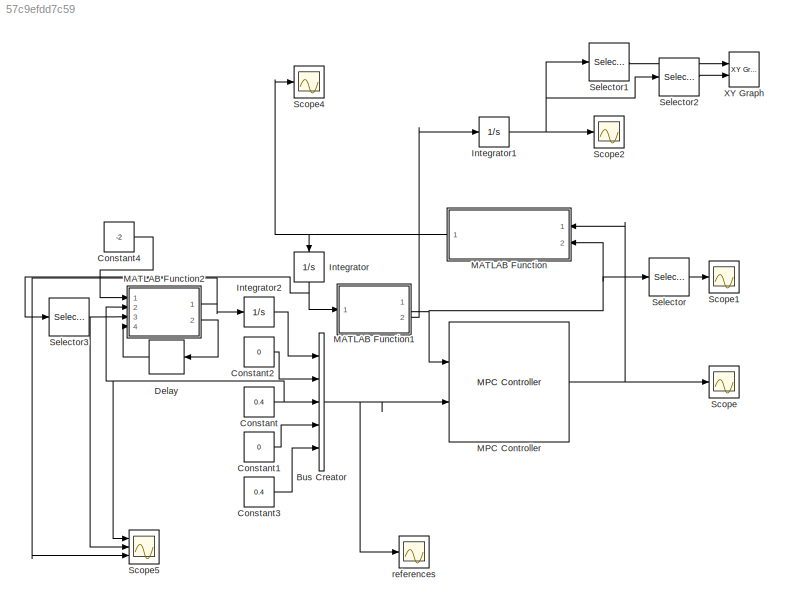
MODEL slx_57c9efdd7c59
KIND model
CONFIG AbsTol = auto
CONFIG EnableMultiTasking = off
CONFIG FixedStep = auto
CONFIG MaxStep = auto
CONFIG MinStep = auto
CONFIG RelTol = 1e-3
CONFIG SampleTimeConstraint = Unconstrained
CONFIG Solver = VariableStepAuto
CONFIG SolverName = VariableStepAuto
CONFIG StartTime = 0.0
CONFIG StopTime = 20.0
BLOCK [BusCreator] Bus Creator
  DisplayOption = bar
  InheritFromInputs = on
  Inputs = 5
  Ports = [5, 1]
BLOCK [Constant] Constant
  Value = 0.4
BLOCK [Constant] Constant1
  Value = 0
BLOCK [Constant] Constant2
  Value = 0
BLOCK [Constant] Constant3
  Value = 0.4
BLOCK [Constant] Constant4
  Value = -2
BLOCK [Delay] Delay
  DelayLength = 1
  InputPortMap = u0
  Ports = [1, 1]
BLOCK [Integrator] Integrator
  Ports = [1, 1]
BLOCK [Integrator] Integrator1
  Ports = [1, 1]
BLOCK [Integrator] Integrator2
  InitialCondition = -5
  Ports = [1, 1]
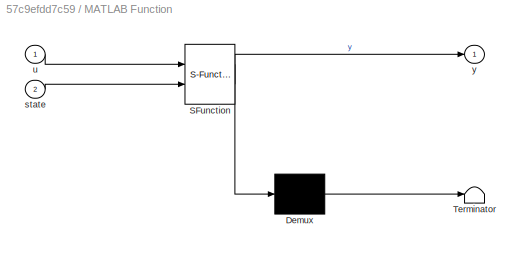
BLOCK [SubSystem] MATLAB Function
  ErrorFcn = Stateflow.Translate.translate
  PermitHierarchicalResolution = ExplicitOnly
  Ports = [2, 1]
  RequestExecContextInheritance = off
  SFBlockType = MATLAB Function
  TreatAsAtomicUnit = on
BLOCK [Demux] MATLAB Function/ Demux 
  Outputs = 1
  Ports = [1, 1]
BLOCK [S-Function] MATLAB Function/ SFunction 
  EnableBusSupport = on
  FunctionName = sf_sfun
  PortCounts = [2 2]
  Ports = [2, 2]
  SFcnIsStateOwnerBlock = off
  SFunctionDeploymentMode = off
  Tag = Stateflow S-Function model 2
BLOCK [Terminator] MATLAB Function/ Terminator 
BLOCK [Inport] MATLAB Function/state
  IconDisplay = Port number
  Port = 2
BLOCK [Inport] MATLAB Function/u
  IconDisplay = Port number
BLOCK [Outport] MATLAB Function/y
  IconDisplay = Port number
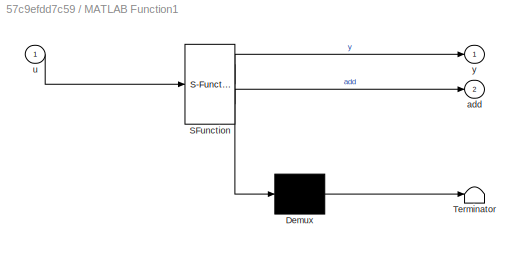
BLOCK [SubSystem] MATLAB Function1
  ErrorFcn = Stateflow.Translate.translate
  PermitHierarchicalResolution = ExplicitOnly
  Ports = [1, 2]
  RequestExecContextInheritance = off
  SFBlockType = MATLAB Function
  TreatAsAtomicUnit = on
BLOCK [Demux] MATLAB Function1/ Demux 
  Outputs = 1
  Ports = [1, 1]
BLOCK [S-Function] MATLAB Function1/ SFunction 
  EnableBusSupport = on
  FunctionName = sf_sfun
  PortCounts = [1 3]
  Ports = [1, 3]
  SFcnIsStateOwnerBlock = off
  SFunctionDeploymentMode = off
  Tag = Stateflow S-Function model 1
BLOCK [Terminator] MATLAB Function1/ Terminator 
BLOCK [Outport] MATLAB Function1/add
  IconDisplay = Port number
  Port = 2
BLOCK [Inport] MATLAB Function1/u
  IconDisplay = Port number
BLOCK [Outport] MATLAB Function1/y
  IconDisplay = Port number
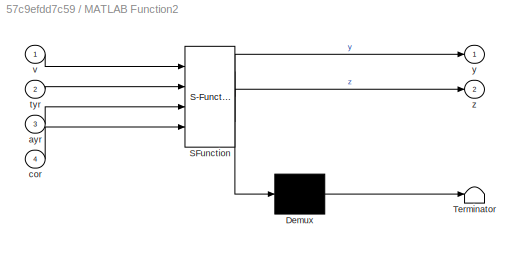
BLOCK [SubSystem] MATLAB Function2
  ErrorFcn = Stateflow.Translate.translate
  PermitHierarchicalResolution = ExplicitOnly
  Ports = [4, 2]
  RequestExecContextInheritance = off
  SFBlockType = MATLAB Function
  TreatAsAtomicUnit = on
BLOCK [Demux] MATLAB Function2/ Demux 
  Outputs = 1
  Ports = [1, 1]
BLOCK [S-Function] MATLAB Function2/ SFunction 
  EnableBusSupport = on
  FunctionName = sf_sfun
  PortCounts = [4 3]
  Ports = [4, 3]
  SFcnIsStateOwnerBlock = off
  SFunctionDeploymentMode = off
  Tag = Stateflow S-Function model 3
BLOCK [Terminator] MATLAB Function2/ Terminator 
BLOCK [Inport] MATLAB Function2/ayr
  IconDisplay = Port number
  Port = 3
BLOCK [Inport] MATLAB Function2/cor
  IconDisplay = Port number
  Port = 4
BLOCK [Inport] MATLAB Function2/tyr
  IconDisplay = Port number
  Port = 2
BLOCK [Inport] MATLAB Function2/v
  IconDisplay = Port number
BLOCK [Outport] MATLAB Function2/y
  IconDisplay = Port number
BLOCK [Outport] MATLAB Function2/z
  IconDisplay = Port number
  Port = 2
BLOCK [Reference] MPC Controller  REF=mpclib/MPC Controller  (lib defined in mdl_ae329e0e0455)
  Ports = [2, 1]
  SCDEnableBlockLinearizationSpecification = on
  SourceBlock = mpclib/MPC Controller
  SourceProductBaseCode = Missing
  SourceProductName = MATLAB Runtime - Model Predictive Control Toolbox Addin
  SourceType = MPC
BLOCK [Scope] Scope
  Floating = off
  NumInputPorts = 1
  Ports = [1]
  ScopeSpecificationString = Simulink.scopes.TimeScopeBlockCfg('CurrentConfiguration', extmgr.ConfigurationSet(extmgr.Configuration('Core','General UI',true),extmgr.Configuration('Core','Source UI',true),extmgr.Configuration('Sources','WiredSimulink',true),extmgr.Configuration('Visuals','Time Domain',true,'SerializedDisplays',{struct('MinYLimReal','-0.18552','MaxYLimReal','0.20348','YLabelReal','','MinYLimMag','0.00000','MaxY...<+1498ch>
BLOCK [Scope] Scope1
  Floating = off
  NumInputPorts = 1
  Ports = [1]
  ScopeSpecificationString = Simulink.scopes.TimeScopeBlockCfg('CurrentConfiguration', extmgr.ConfigurationSet(extmgr.Configuration('Core','General UI',true),extmgr.Configuration('Core','Source UI',true),extmgr.Configuration('Sources','WiredSimulink',true,'DataLoggingVariableName','ScopeData1'),extmgr.Configuration('Visuals','Time Domain',true,'SerializedDisplays',{struct('MinYLimReal','-4.42349','MaxYLimReal','7.98095','YLab...<+1573ch>
BLOCK [Scope] Scope2
  Floating = off
  NumInputPorts = 1
  Ports = [1]
  ScopeSpecificationString = Simulink.scopes.TimeScopeBlockCfg('CurrentConfiguration', extmgr.ConfigurationSet(extmgr.Configuration('Core','General UI',true),extmgr.Configuration('Core','Source UI',true),extmgr.Configuration('Sources','WiredSimulink',true,'DataLoggingVariableName','ScopeData2'),extmgr.Configuration('Visuals','Time Domain',true,'SerializedDisplays',{struct('MinYLimReal','-4.27969','MaxYLimReal','11.91955','YLa...<+1820ch>
BLOCK [Scope] Scope4
  Floating = off
  NumInputPorts = 1
  Ports = [1]
  ScopeSpecificationString = Simulink.scopes.TimeScopeBlockCfg('CurrentConfiguration', extmgr.ConfigurationSet(extmgr.Configuration('Core','General UI',true),extmgr.Configuration('Core','Source UI',true),extmgr.Configuration('Sources','WiredSimulink',true,'DataLoggingVariableName','ScopeData4'),extmgr.Configuration('Visuals','Time Domain',true,'SerializedDisplays',{struct('MinYLimReal','-7.5548','MaxYLimReal','4.36812','YLabe...<+1635ch>
BLOCK [Scope] Scope5
  Floating = off
  NumInputPorts = 3
  Ports = [3]
  ScopeSpecificationString = Simulink.scopes.TimeScopeBlockCfg('CurrentConfiguration', extmgr.ConfigurationSet(extmgr.Configuration('Core','General UI',true),extmgr.Configuration('Core','Source UI',true),extmgr.Configuration('Sources','WiredSimulink',true,'DataLoggingVariableName','ScopeData5'),extmgr.Configuration('Visuals','Time Domain',true,'SerializedDisplays',{struct('MinYLimReal','-7.5548','MaxYLimReal','4.36812','YLabe...<+1628ch>
BLOCK [Selector] Selector
  IndexOptions = Index vector (dialog)
  Indices = [1 2 3 4]
  InputPortWidth = 5
  OutputSizes = 1
  Ports = [1, 1]
BLOCK [Selector] Selector1
  IndexOptions = Index vector (dialog)
  Indices = [1]
  InputPortWidth = 3
  OutputSizes = 1
  Ports = [1, 1]
BLOCK [Selector] Selector2
  IndexOptions = Index vector (dialog)
  Indices = [2]
  InputPortWidth = 3
  OutputSizes = 1
  Ports = [1, 1]
BLOCK [Selector] Selector3
  IndexOptions = Index vector (dialog)
  Indices = [3]
  InputPortWidth = 5
  OutputSizes = 1
  Ports = [1, 1]
BLOCK [Reference] XY Graph  REF=simulink/Sinks/XY Graph
  Ports = [2]
  SourceBlock = simulink/Sinks/XY Graph
  SourceProductBaseCode = SL
  SourceProductName = Simulink
  SourceType = XY scope.
BLOCK [Scope] references
  Floating = off
  NumInputPorts = 1
  Ports = [1]
  ScopeSpecificationString = Simulink.scopes.TimeScopeBlockCfg('CurrentConfiguration', extmgr.ConfigurationSet(extmgr.Configuration('Core','General UI',true),extmgr.Configuration('Core','Source UI',true),extmgr.Configuration('Sources','WiredSimulink',true,'DataLoggingVariableName','ScopeData3'),extmgr.Configuration('Visuals','Time Domain',true,'SerializedDisplays',{struct('MinYLimReal','-5.675','MaxYLimReal','1.075','YLabelRe...<+1578ch>
NET Bus Creator:1 -> MPC Controller:2, references:1
LINE Constant1:1 -> Bus Creator:4
LINE Constant2:1 -> Bus Creator:2
LINE Constant3:1 -> Bus Creator:5
LINE Constant4:1 -> MATLAB Function2:1
NET Constant:1 -> Bus Creator:3, MATLAB Function2:2, Scope5:1
LINE Delay:1 -> MATLAB Function2:4
NET Integrator1:1 -> Scope2:1, Selector1:1, Selector2:1
LINE Integrator2:1 -> Bus Creator:1
NET Integrator:1 -> MATLAB Function1:1, Selector3:1
NET MATLAB Function1:1 -> MATLAB Function:2, MPC Controller:1, Selector:1
LINE MATLAB Function1:2 -> Integrator1:1
NET MATLAB Function2:1 -> Integrator2:1, Scope5:3
LINE MATLAB Function2:2 -> Delay:1
NET MATLAB Function:1 -> Integrator:1, Scope4:1
NET MPC Controller:1 -> MATLAB Function:1, Scope:1
LINE Selector1:1 -> XY Graph:1
LINE Selector2:1 -> XY Graph:2
NET Selector3:1 -> MATLAB Function2:3, Scope5:2
LINE Selector:1 -> Scope1:1
note: NET lines group one-source signal fan-out (src -> all destinations, sorted); 1:1 wires keep LINE
CHART MATLAB Function1 states=1 transitions=1
  STATE_LABEL 'eML_blk_kernel()'
  STATE_LABEL 'SCRIPT:\nfunction [y, add]= fcn(u)\n\nif u(1)>pi\n    %u(1) = u(1) -2*pi;\nend\nif u(1)<-pi\n    %u(1) = u(1) +2*pi;\nend\n\ny = u;\n\nVx = 2;\nadd = [cos(y(2))*Vx; sin(y(2))*Vx; y(3)];\n\n'
CHART MATLAB Function states=1 transitions=1
  STATE_LABEL 'eML_blk_kernel()'
  STATE_LABEL 'SCRIPT:\nfunction y = fcn(u, state)\n\nm = 30;     % Mass\nlf = 0.7;   % Distance mass center/front wheel\nlr = 0.3;   % Distance mass center/rear wheel\ncf = 3000;   % Cornering Stiffness front\ncr = 3000;   % Cornering Stiffness rear\niz = 100;   % Yaw Moment of Innertia\n\nVx = 2.0;\n\n% Continuous-time model\nAc = [0, 0, Vx, 0, -Vx;\n      0, 0, 1, 0, 0;\n      0, 0, -(cr*lr^2+cf*lf^2)/(iz*Vx), -(cr*lr-cf*lf...<+177ch>'
CHART MATLAB Function2 states=1 transitions=1
  STATE_LABEL 'eML_blk_kernel()'
  STATE_LABEL 'SCRIPT:\nfunction [y, z]= fcn(v, tyr, ayr, cor)\n\ncorrection_angle = (ayr-tyr);\n\ny = correction_angle*v;\nz = correction_angle;\n\n'
